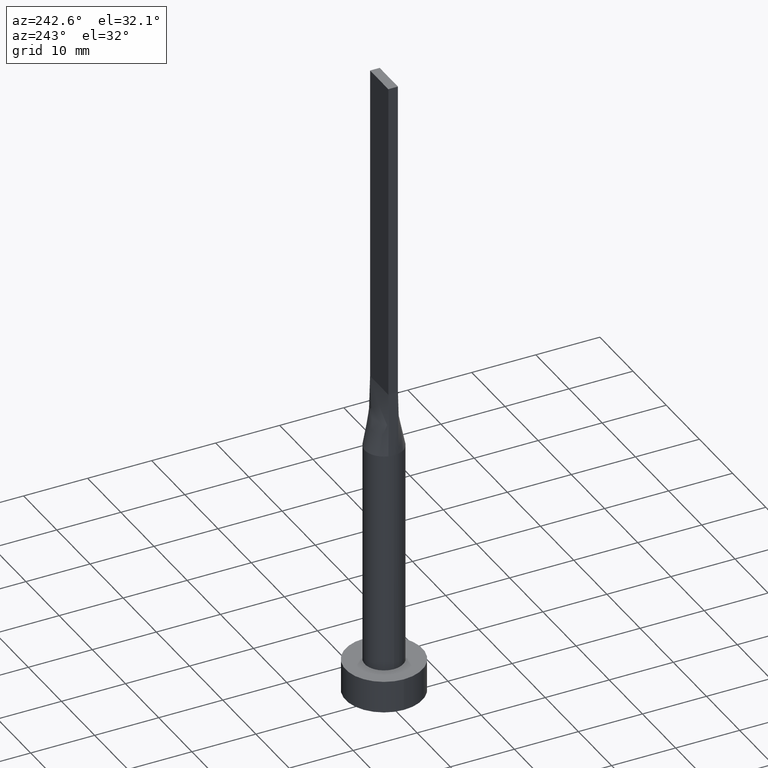
[diagram: clean part render]
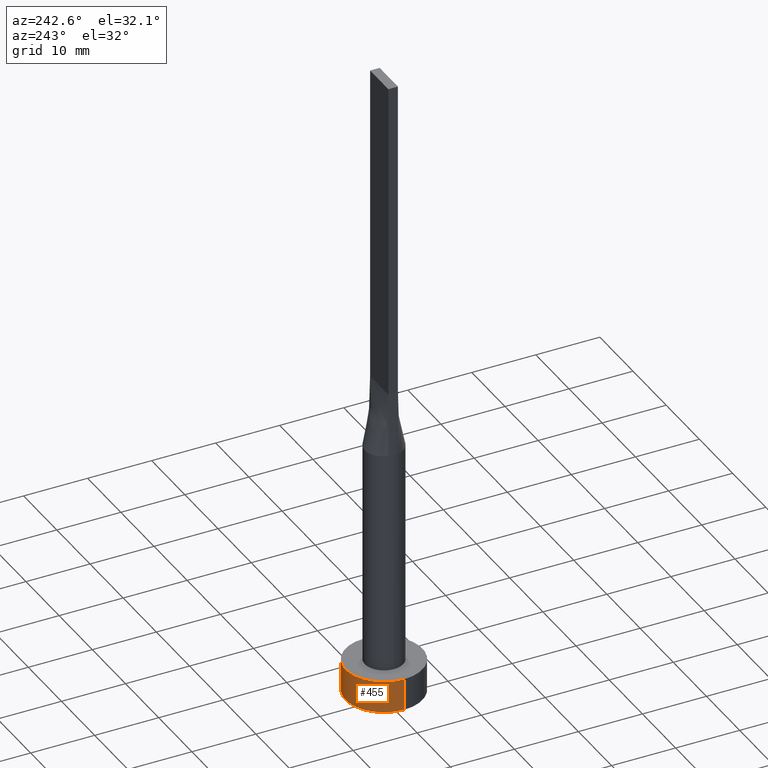
[diagram: same view with one face highlighted and labeled with its STEP entity id]
A machine part, auxiliary view. The second image highlights one B-rep face of the part: STEP entity #455.
In plain terms, the highlighted cylindrical surface (partial cylindrical patch) has radius 6 mm, axis along (-0, -0, -1).
Its self-contained STEP definition (entity closure, byte-faithful):
#28 = CARTESIAN_POINT ( 'NONE',  ( -6.000000000000000888, 0.000000000000000000, 5.000000000000000000 ) ) ;
#33 = AXIS2_PLACEMENT_3D ( 'NONE', #174, #312, #399 ) ;
#39 = ORIENTED_EDGE ( 'NONE', *, *, #546, .F. ) ;
#63 = CARTESIAN_POINT ( 'NONE',  ( 0.000000000000000000, 0.000000000000000000, 5.000000000000000000 ) ) ;
#70 = CARTESIAN_POINT ( 'NONE',  ( -6.000000000000000888, 0.000000000000000000, 5.000000000000000000 ) ) ;
#92 = EDGE_CURVE ( 'NONE', #223, #127, #193, .T. ) ;
#116 = AXIS2_PLACEMENT_3D ( 'NONE', #63, #367, #186 ) ;
#126 = ORIENTED_EDGE ( 'NONE', *, *, #190, .F. ) ;
#127 = VERTEX_POINT ( 'NONE', #427 ) ;
#148 = VECTOR ( 'NONE', #253, 1000.000000000000000 ) ;
#174 = CARTESIAN_POINT ( 'NONE',  ( 0.000000000000000000, 0.000000000000000000, 0.000000000000000000 ) ) ;
#186 = DIRECTION ( 'NONE',  ( -1.000000000000000000, 0.000000000000000000, 0.000000000000000000 ) ) ;
#188 = CYLINDRICAL_SURFACE ( 'NONE', #116, 6.000000000000000888 ) ;
#190 = EDGE_CURVE ( 'NONE', #223, #531, #438, .T. ) ;
#193 = LINE ( 'NONE', #197, #290 ) ;
#197 = CARTESIAN_POINT ( 'NONE',  ( 6.000000000000000888, 7.347880794884120722E-16, 5.000000000000000000 ) ) ;
#217 = DIRECTION ( 'NONE',  ( 1.000000000000000000, 0.000000000000000000, 0.000000000000000000 ) ) ;
#223 = VERTEX_POINT ( 'NONE', #231 ) ;
#231 = CARTESIAN_POINT ( 'NONE',  ( 6.000000000000000888, 7.347880794884120722E-16, 5.000000000000000000 ) ) ;
#232 = VERTEX_POINT ( 'NONE', #527 ) ;
#253 = DIRECTION ( 'NONE',  ( -0.000000000000000000, -0.000000000000000000, -1.000000000000000000 ) ) ;
#290 = VECTOR ( 'NONE', #376, 1000.000000000000000 ) ;
#291 = FACE_OUTER_BOUND ( 'NONE', #496, .T. ) ;
#293 = CIRCLE ( 'NONE', #33, 6.000000000000000888 ) ;
#300 = EDGE_CURVE ( 'NONE', #127, #232, #293, .T. ) ;
#312 = DIRECTION ( 'NONE',  ( 0.000000000000000000, 0.000000000000000000, 1.000000000000000000 ) ) ;
#317 = AXIS2_PLACEMENT_3D ( 'NONE', #349, #442, #217 ) ;
#342 = LINE ( 'NONE', #28, #148 ) ;
#347 = ORIENTED_EDGE ( 'NONE', *, *, #92, .T. ) ;
#349 = CARTESIAN_POINT ( 'NONE',  ( 0.000000000000000000, 0.000000000000000000, 5.000000000000000000 ) ) ;
#367 = DIRECTION ( 'NONE',  ( -0.000000000000000000, -0.000000000000000000, -1.000000000000000000 ) ) ;
#376 = DIRECTION ( 'NONE',  ( -0.000000000000000000, -0.000000000000000000, -1.000000000000000000 ) ) ;
#399 = DIRECTION ( 'NONE',  ( 1.000000000000000000, 0.000000000000000000, 0.000000000000000000 ) ) ;
#427 = CARTESIAN_POINT ( 'NONE',  ( 6.000000000000000888, 7.347880794884120722E-16, 0.000000000000000000 ) ) ;
#438 = CIRCLE ( 'NONE', #317, 6.000000000000000888 ) ;
#442 = DIRECTION ( 'NONE',  ( 0.000000000000000000, 0.000000000000000000, 1.000000000000000000 ) ) ;
#455 = ADVANCED_FACE ( 'NONE', ( #291 ), #188, .T. ) ;
#458 = ORIENTED_EDGE ( 'NONE', *, *, #300, .T. ) ;
#496 = EDGE_LOOP ( 'NONE', ( #126, #347, #458, #39 ) ) ;
#527 = CARTESIAN_POINT ( 'NONE',  ( -6.000000000000000888, 0.000000000000000000, 0.000000000000000000 ) ) ;
#531 = VERTEX_POINT ( 'NONE', #70 ) ;
#546 = EDGE_CURVE ( 'NONE', #531, #232, #342, .T. ) ;